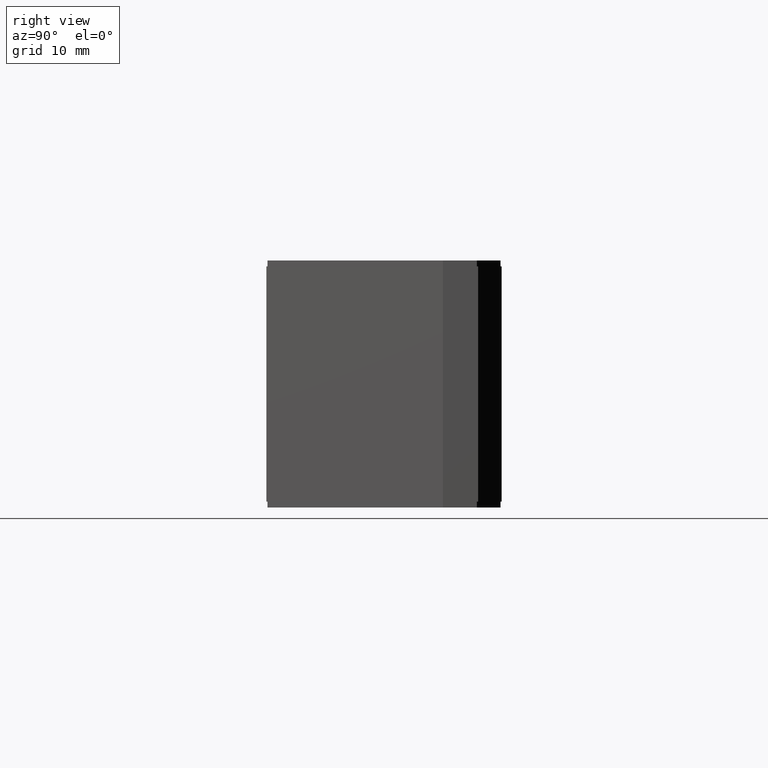
[diagram: clean part render]
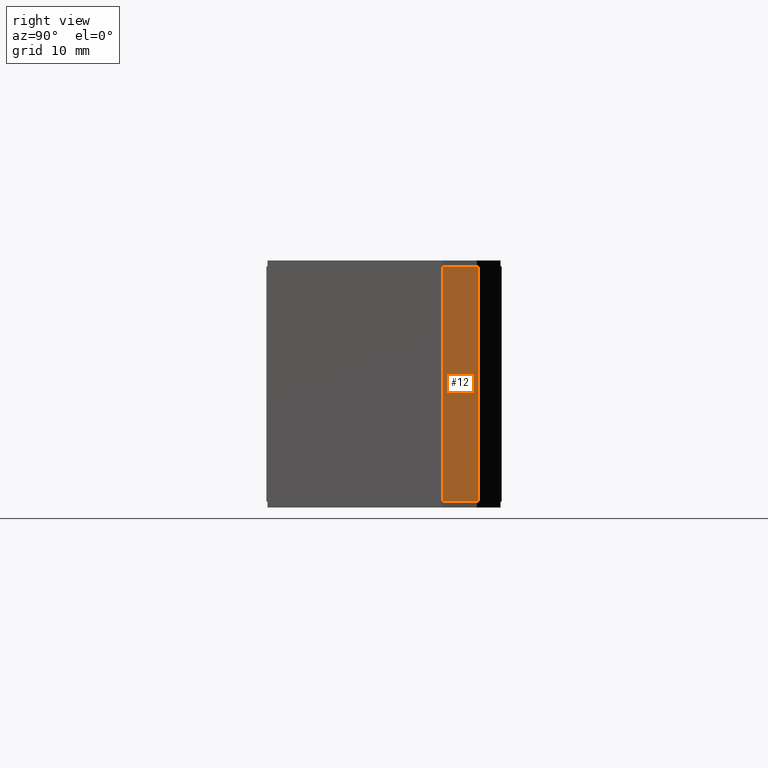
[diagram: same view with one face highlighted and labeled with its STEP entity id]
A machine part, right view. The second image highlights one B-rep face of the part: STEP entity #12.
In plain terms, the highlighted planar face has unit normal (1, 0, 0).
Its self-contained STEP definition (entity closure, byte-faithful):
#12 = ADVANCED_FACE ( 'NONE', ( #2316 ), #2315, .T. ) ;
#93 = EDGE_CURVE ( 'NONE', #2827, #2853, #1904, .T. ) ;
#98 = EDGE_CURVE ( 'NONE', #2854, #2853, #1886, .T. ) ;
#143 = EDGE_CURVE ( 'NONE', #2811, #2854, #1758, .T. ) ;
#144 = EDGE_CURVE ( 'NONE', #2811, #2827, #1748, .T. ) ;
#480 = VECTOR ( 'NONE', #1884, 1000.000000000000000 ) ;
#553 = VECTOR ( 'NONE', #1749, 1000.000000000000000 ) ;
#575 = VECTOR ( 'NONE', #1900, 1000.000000000000000 ) ;
#618 = AXIS2_PLACEMENT_3D ( 'NONE', #2317, #2310, #2309 ) ;
#687 = VECTOR ( 'NONE', #1745, 1000.000000000000000 ) ;
#908 = EDGE_LOOP ( 'NONE', ( #3085, #3087, #3088, #3089 ) ) ;
#1745 = DIRECTION ( 'NONE',  ( -0.0000000000000000000, -0.0000000000000000000, 1.000000000000000000 ) ) ;
#1746 = CARTESIAN_POINT ( 'NONE',  ( 27.49999999999999600, 0.0000000000000000000, -21.00000000000000000 ) ) ;
#1748 = LINE ( 'NONE', #1746, #687 ) ;
#1749 = DIRECTION ( 'NONE',  ( -0.0000000000000000000, 1.000000000000000000, -0.0000000000000000000 ) ) ;
#1757 = CARTESIAN_POINT ( 'NONE',  ( 27.49999999999999600, 5.000000000000000000, -20.00000000000000000 ) ) ;
#1758 = LINE ( 'NONE', #1757, #553 ) ;
#1884 = DIRECTION ( 'NONE',  ( 0.0000000000000000000, 0.0000000000000000000, 1.000000000000000000 ) ) ;
#1885 = CARTESIAN_POINT ( 'NONE',  ( 27.49999999999999600, 2.999999999999997800, -20.00000000000000000 ) ) ;
#1886 = LINE ( 'NONE', #1885, #480 ) ;
#1900 = DIRECTION ( 'NONE',  ( -0.0000000000000000000, 1.000000000000000000, -0.0000000000000000000 ) ) ;
#1904 = LINE ( 'NONE', #1905, #575 ) ;
#1905 = CARTESIAN_POINT ( 'NONE',  ( 27.49999999999999600, 5.000000000000000000, 0.0000000000000000000 ) ) ;
#2309 = DIRECTION ( 'NONE',  ( -0.0000000000000000000, 0.0000000000000000000, -1.000000000000000000 ) ) ;
#2310 = DIRECTION ( 'NONE',  ( 1.000000000000000000, 0.0000000000000000000, -0.0000000000000000000 ) ) ;
#2315 = PLANE ( 'NONE',  #618 ) ;
#2316 = FACE_OUTER_BOUND ( 'NONE', #908, .T. ) ;
#2317 = CARTESIAN_POINT ( 'NONE',  ( 27.49999999999999600, 5.000000000000000000, -20.00000000000000000 ) ) ;
#2530 = CARTESIAN_POINT ( 'NONE',  ( 27.49999999999999600, 2.999999999999998200, -20.00000000000000000 ) ) ;
#2532 = CARTESIAN_POINT ( 'NONE',  ( 27.49999999999999600, 2.999999999999997300, 0.0000000000000000000 ) ) ;
#2569 = CARTESIAN_POINT ( 'NONE',  ( 27.49999999999999600, 0.0000000000000000000, 0.0000000000000000000 ) ) ;
#2592 = CARTESIAN_POINT ( 'NONE',  ( 27.49999999999999600, 0.0000000000000000000, -20.00000000000000000 ) ) ;
#2811 = VERTEX_POINT ( 'NONE', #2592 ) ;
#2827 = VERTEX_POINT ( 'NONE', #2569 ) ;
#2853 = VERTEX_POINT ( 'NONE', #2532 ) ;
#2854 = VERTEX_POINT ( 'NONE', #2530 ) ;
#3085 = ORIENTED_EDGE ( 'NONE', *, *, #144, .F. ) ;
#3087 = ORIENTED_EDGE ( 'NONE', *, *, #143, .T. ) ;
#3088 = ORIENTED_EDGE ( 'NONE', *, *, #98, .T. ) ;
#3089 = ORIENTED_EDGE ( 'NONE', *, *, #93, .F. ) ;